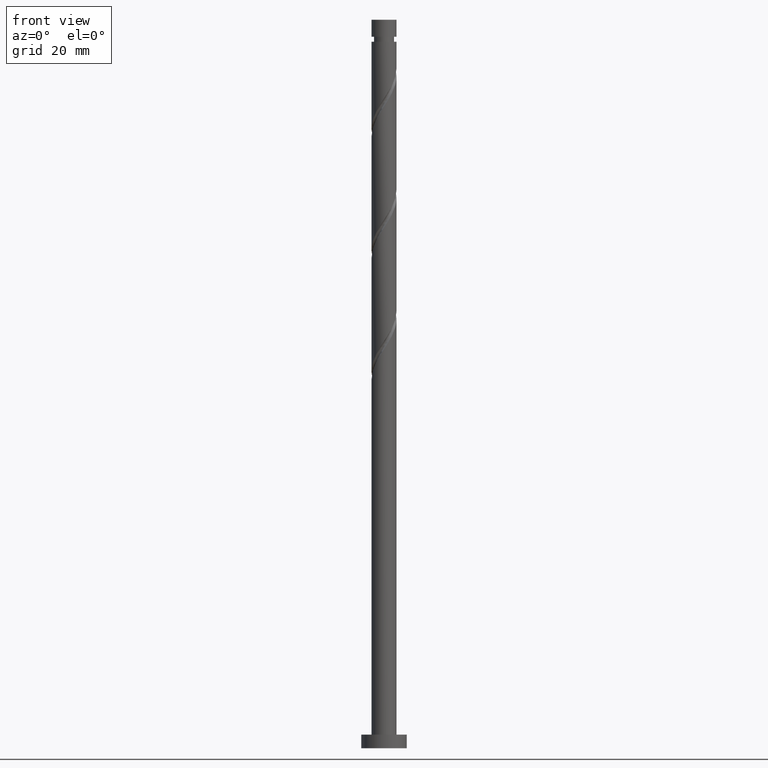
[diagram: clean part render]
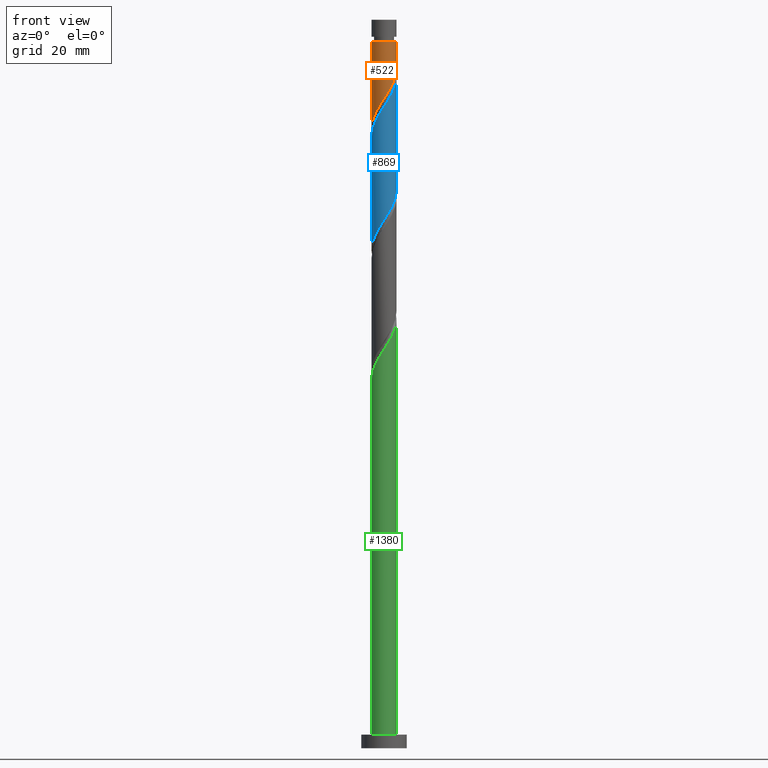
[diagram: same view with three faces highlighted in distinct colors, each labeled with its STEP entity id]
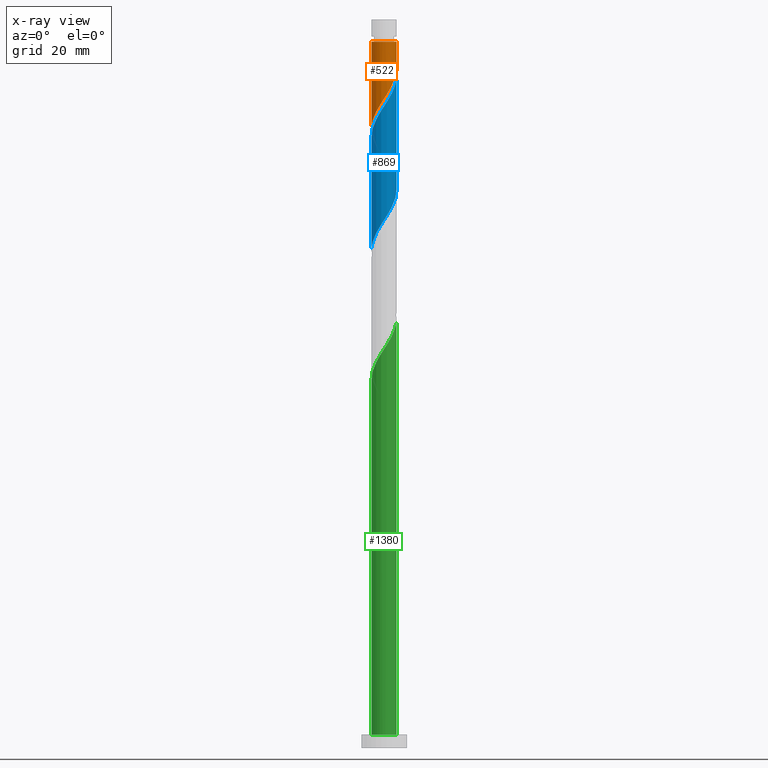
[diagram: x-ray of the same camera — body ghosted, the three highlighted faces saturated]
A machine part, front view with three faces highlighted in distinct colors.
The next image is the same camera in x-ray (body ghosted, the three faces saturated) — at least one of them is partly hidden behind the body in this view.
Their STEP definitions:

[orange] entity #522 — the highlighted cylindrical surface (edge-blend (fillet) strip) has radius 2.75 mm, axis along (-0, -0, -1).
#8 = CARTESIAN_POINT ( 'NONE',  ( 2.456662652402862523, -1.297552352829636879, 147.2716516557582622 ) ) ;
#12 = EDGE_LOOP ( 'NONE', ( #993, #885, #1027, #1538 ) ) ;
#15 = CARTESIAN_POINT ( 'NONE',  ( -2.678791222997725097, -0.6217536357676980430, 136.9686213527279222 ) ) ;
#39 = CARTESIAN_POINT ( 'NONE',  ( 1.365166370583079214, -2.419742605459063611, 144.8474092315157975 ) ) ;
#48 = CARTESIAN_POINT ( 'NONE',  ( 0.9966568199191122579, -2.563040222725488704, 144.2413486254551742 ) ) ;
#51 = DIRECTION ( 'NONE',  ( -0.000000000000000000, -0.000000000000000000, -1.000000000000000000 ) ) ;
#60 = CARTESIAN_POINT ( 'NONE',  ( -1.284345140793827555, -2.431657368816438236, 140.6049849890915198 ) ) ;
#139 = CARTESIAN_POINT ( 'NONE',  ( 2.589687973961434242, -0.9252114339541623877, 147.8777122618187718 ) ) ;
#186 = CARTESIAN_POINT ( 'NONE',  ( 2.750000000000000888, 6.805353420090867911E-16, 149.3332273471803262 ) ) ;
#188 = CARTESIAN_POINT ( 'NONE',  ( -1.633964688862560743, -2.246996415572368289, 139.9989243830308965 ) ) ;
#264 = CARTESIAN_POINT ( 'NONE',  ( -2.589396545961874185, -1.006905667779019353, 137.5746819587884886 ) ) ;
#316 = DIRECTION ( 'NONE',  ( -0.000000000000000000, -0.000000000000000000, -1.000000000000000000 ) ) ;
#373 = CARTESIAN_POINT ( 'NONE',  ( 2.749999999999992895, 3.367778697655216574E-16, 155.1504395345461091 ) ) ;
#394 = EDGE_CURVE ( 'NONE', #443, #542, #650, .T. ) ;
#399 = CARTESIAN_POINT ( 'NONE',  ( -0.1597605880921889598, -2.773681677939491497, 142.4231668072733612 ) ) ;
#422 = VECTOR ( 'NONE', #51, 1000.000000000000000 ) ;
#427 = CARTESIAN_POINT ( 'NONE',  ( -2.750000000000000000, -1.263851349445446926E-15, 135.9998940138469834 ) ) ;
#443 = VERTEX_POINT ( 'NONE', #373 ) ;
#455 = CARTESIAN_POINT ( 'NONE',  ( 1.678377091053236736, -2.178428410627182288, 145.4534698375763924 ) ) ;
#514 = DIRECTION ( 'NONE',  ( -0.000000000000000000, -0.000000000000000000, -1.000000000000000000 ) ) ;
#522 = ADVANCED_FACE ( 'NONE', ( #1037 ), #1585, .T. ) ;
#529 = AXIS2_PLACEMENT_3D ( 'NONE', #1461, #316, #1334 ) ;
#539 = CARTESIAN_POINT ( 'NONE',  ( 2.224125231963128613, -1.617333284312469255, 146.6655910496975821 ) ) ;
#542 = VERTEX_POINT ( 'NONE', #186 ) ;
#546 = CARTESIAN_POINT ( 'NONE',  ( -0.5472430904086417192, -2.695000000000000284, 141.8171062012127379 ) ) ;
#549 = CARTESIAN_POINT ( 'NONE',  ( 2.745449597776791872, -0.1581344556611563590, 149.0898334739399900 ) ) ;
#616 = CARTESIAN_POINT ( 'NONE',  ( 2.750000000000000888, 6.805353420090867911E-16, 149.3332273471803262 ) ) ;
#649 = CARTESIAN_POINT ( 'NONE',  ( 1.991587811523396256, -1.937114215795302075, 146.0595304436370157 ) ) ;
#650 = LINE ( 'NONE', #1152, #1459 ) ;
#832 = EDGE_CURVE ( 'NONE', #443, #1355, #1020, .T. ) ;
#864 = CARTESIAN_POINT ( 'NONE',  ( -0.9347255927250943675, -2.616318322060508628, 141.2110455951521431 ) ) ;
#885 = ORIENTED_EDGE ( 'NONE', *, *, #832, .T. ) ;
#936 = AXIS2_PLACEMENT_3D ( 'NONE', #1015, #514, #991 ) ;
#953 = CARTESIAN_POINT ( 'NONE',  ( 0.6281472692551457460, -2.706337839991914240, 143.6352880193945509 ) ) ;
#991 = DIRECTION ( 'NONE',  ( -1.000000000000000000, 0.000000000000000000, 0.000000000000000000 ) ) ;
#993 = ORIENTED_EDGE ( 'NONE', *, *, #394, .F. ) ;
#1015 = CARTESIAN_POINT ( 'NONE',  ( 0.000000000000000000, 0.000000000000000000, 155.1504395345461091 ) ) ;
#1020 = CIRCLE ( 'NONE', #936, 2.749999999999992895 ) ;
#1027 = ORIENTED_EDGE ( 'NONE', *, *, #1047, .T. ) ;
#1037 = FACE_OUTER_BOUND ( 'NONE', #12, .T. ) ;
#1041 = CARTESIAN_POINT ( 'NONE',  ( 2.722713295520007737, -0.5528705150786890066, 148.4837728678794804 ) ) ;
#1047 = EDGE_CURVE ( 'NONE', #1355, #1123, #1312, .T. ) ;
#1048 = CARTESIAN_POINT ( 'NONE',  ( -2.750000000000000000, -1.263851349445446926E-15, 135.9998940138469834 ) ) ;
#1101 = CARTESIAN_POINT ( 'NONE',  ( -1.917397186166559075, -1.971316319234577064, 139.3928637769703016 ) ) ;
#1111 = CARTESIAN_POINT ( 'NONE',  ( -2.395113114716214575, -1.351270945337903262, 138.1807425648491403 ) ) ;
#1123 = VERTEX_POINT ( 'NONE', #1048 ) ;
#1125 = CARTESIAN_POINT ( 'NONE',  ( 0.2341933405814775881, -2.740009758965702424, 143.0292274133339276 ) ) ;
#1152 = CARTESIAN_POINT ( 'NONE',  ( 2.750000000000000000, 3.367778697655221012E-16, 160.0000000000000000 ) ) ;
#1178 = CARTESIAN_POINT ( 'NONE',  ( -2.750000000000000000, 0.000000000000000000, 160.0000000000000000 ) ) ;
#1234 = CARTESIAN_POINT ( 'NONE',  ( -2.200829683470556741, -1.695636222896787393, 138.7868031709097068 ) ) ;
#1312 = LINE ( 'NONE', #1178, #422 ) ;
#1334 = DIRECTION ( 'NONE',  ( -1.000000000000000000, 0.000000000000000000, 0.000000000000000000 ) ) ;
#1355 = VERTEX_POINT ( 'NONE', #1483 ) ;
#1459 = VECTOR ( 'NONE', #1661, 1000.000000000000000 ) ;
#1461 = CARTESIAN_POINT ( 'NONE',  ( 0.000000000000000000, 0.000000000000000000, 160.0000000000000000 ) ) ;
#1483 = CARTESIAN_POINT ( 'NONE',  ( -2.749999999999992895, 0.000000000000000000, 155.1504395345461091 ) ) ;
#1527 = EDGE_CURVE ( 'NONE', #542, #1123, #1537, .T. ) ;
#1537 =( BOUNDED_CURVE ( )  B_SPLINE_CURVE ( 2, ( #616, #1640, #549, #1041, #139, #8, #539, #649, #455, #39, #48, #953, #1125, #399, #546, #864, #60, #188, #1101, #1234, #1111, #264, #15, #1588, #427 ),
 .UNSPECIFIED., .F., .T. ) 
 B_SPLINE_CURVE_WITH_KNOTS ( ( 3, 2, 2, 2, 2, 2, 2, 2, 2, 2, 2, 2, 3 ),
 ( 0.3045252162417514397, 0.3068181818181818232, 0.3181818181818181768, 0.3295454545454545303, 0.3409090909090908839, 0.3522727272727272929, 0.3636363636363636465, 0.3750000000000000000, 0.3863636363636363535, 0.3977272727272727071, 0.4090909090909091161, 0.4204545454545454697, 0.4295252162417511066 ),
 .UNSPECIFIED. ) 
 CURVE ( )  GEOMETRIC_REPRESENTATION_ITEM ( )  RATIONAL_B_SPLINE_CURVE ( ( 0.9061101570135605687, 0.9072237824201427880, 0.9090909090909201629, 0.8998376744372224012, 0.9090909090909201629, 0.8998376744372224012, 0.9090909090909201629, 0.8998376744372224012, 0.9090909090909201629, 0.8998376744372224012, 0.9090909090909201629, 0.8998376744372224012, 0.9090909090909201629, 0.8998376744372224012, 0.9090909090909201629, 0.8998376744372224012, 0.9090909090909201629, 0.8998376744372224012, 0.9090909090909201629, 0.8998376744372224012, 0.9090909090909201629, 0.8998376744372224012, 0.9090909090909201629, 0.9017048011080001091, 0.9061101570135602357 ) ) 
 REPRESENTATION_ITEM ( '' )  );
#1538 = ORIENTED_EDGE ( 'NONE', *, *, #1527, .F. ) ;
#1585 = CYLINDRICAL_SURFACE ( 'NONE', #529, 2.750000000000000000 ) ;
#1588 = CARTESIAN_POINT ( 'NONE',  ( -2.749999999999999112, -0.3149545503090959708, 136.4858539668182686 ) ) ;
#1640 = CARTESIAN_POINT ( 'NONE',  ( 2.749999999999999556, -0.07913269794051565331, 149.2111293424620442 ) ) ;
#1661 = DIRECTION ( 'NONE',  ( -0.000000000000000000, -0.000000000000000000, -1.000000000000000000 ) ) ;

[blue] entity #869 — the highlighted cylindrical surface (edge-blend (fillet) strip) has radius 2.75 mm, axis along (-0, -0, -1).
#5 = CARTESIAN_POINT ( 'NONE',  ( -2.745449597776796313, -0.1581344556611554431, 134.5443789284854859 ) ) ;
#42 = CARTESIAN_POINT ( 'NONE',  ( 2.745449597776791872, -0.1581344556611563590, 122.4231668072733328 ) ) ;
#98 = VERTEX_POINT ( 'NONE', #1179 ) ;
#136 = CARTESIAN_POINT ( 'NONE',  ( -2.456662652402866964, -1.297552352829637989, 136.3625607466672705 ) ) ;
#144 = CARTESIAN_POINT ( 'NONE',  ( -0.6281472692551464121, -2.706337839991918237, 139.9989243830309533 ) ) ;
#150 = CARTESIAN_POINT ( 'NONE',  ( 2.722713295520007737, -0.5528705150786890066, 121.8171062012127663 ) ) ;
#181 = CARTESIAN_POINT ( 'NONE',  ( 2.678791222997729093, -0.6217536357676993752, 146.6655910496976105 ) ) ;
#203 = LINE ( 'NONE', #1508, #532 ) ;
#213 = CARTESIAN_POINT ( 'NONE',  ( 0.9966568199191122579, -2.563040222725488704, 117.5746819587885312 ) ) ;
#244 = LINE ( 'NONE', #1653, #963 ) ;
#321 = CARTESIAN_POINT ( 'NONE',  ( 0.6281472692551457460, -2.706337839991914240, 116.9686213527279079 ) ) ;
#327 =( BOUNDED_CURVE ( )  B_SPLINE_CURVE ( 2, ( #1167, #1596, #42, #150, #942, #1474, #1371, #1614, #1216, #1487, #213, #321, #588, #1227, #828, #1104, #1346, #1208, #593, #1627, #976, #1495, #1607, #941, #819 ),
 .UNSPECIFIED., .F., .T. ) 
 B_SPLINE_CURVE_WITH_KNOTS ( ( 3, 2, 2, 2, 2, 2, 2, 2, 2, 2, 2, 2, 3 ),
 ( 0.5545252162417511066, 0.5568181818181817677, 0.5681818181818182323, 0.5795454545454545858, 0.5909090909090909394, 0.6022727272727272929, 0.6136363636363636465, 0.6250000000000000000, 0.6363636363636363535, 0.6477272727272727071, 0.6590909090909090606, 0.6704545454545454142, 0.6795252162417513286 ),
 .UNSPECIFIED. ) 
 CURVE ( )  GEOMETRIC_REPRESENTATION_ITEM ( )  RATIONAL_B_SPLINE_CURVE ( ( 0.9061101570135603467, 0.9072237824201425660, 0.9090909090909201629, 0.8998376744372224012, 0.9090909090909201629, 0.8998376744372224012, 0.9090909090909201629, 0.8998376744372224012, 0.9090909090909201629, 0.8998376744372224012, 0.9090909090909201629, 0.8998376744372224012, 0.9090909090909201629, 0.8998376744372224012, 0.9090909090909201629, 0.8998376744372224012, 0.9090909090909201629, 0.8998376744372224012, 0.9090909090909201629, 0.8998376744372224012, 0.9090909090909201629, 0.8998376744372224012, 0.9090909090909201629, 0.9017048011079998870, 0.9061101570135604577 ) ) 
 REPRESENTATION_ITEM ( '' )  );
#328 = FACE_OUTER_BOUND ( 'NONE', #718, .T. ) ;
#351 = ORIENTED_EDGE ( 'NONE', *, *, #1151, .F. ) ;
#400 = CARTESIAN_POINT ( 'NONE',  ( 0.5472430904086413861, -2.695000000000004281, 141.8171062012127379 ) ) ;
#416 = EDGE_CURVE ( 'NONE', #1078, #98, #244, .T. ) ;
#520 = CARTESIAN_POINT ( 'NONE',  ( -2.722713295520012178, -0.5528705150786885625, 135.1504395345461091 ) ) ;
#528 = ORIENTED_EDGE ( 'NONE', *, *, #949, .F. ) ;
#530 = CARTESIAN_POINT ( 'NONE',  ( -1.678377091053239623, -2.178428410627184508, 138.1807425648491687 ) ) ;
#532 = VECTOR ( 'NONE', #1211, 1000.000000000000000 ) ;
#573 = CARTESIAN_POINT ( 'NONE',  ( 2.750000000000004441, 1.705077560198580878E-15, 147.6343183885785493 ) ) ;
#588 = CARTESIAN_POINT ( 'NONE',  ( 0.2341933405814775881, -2.740009758965702424, 116.3625607466672989 ) ) ;
#593 = CARTESIAN_POINT ( 'NONE',  ( -1.917397186166559075, -1.971316319234577064, 112.7261971103036586 ) ) ;
#595 = EDGE_CURVE ( 'NONE', #631, #98, #327, .T. ) ;
#631 = VERTEX_POINT ( 'NONE', #1494 ) ;
#647 = CARTESIAN_POINT ( 'NONE',  ( -2.224125231963132165, -1.617333284312471475, 136.9686213527279506 ) ) ;
#657 = CARTESIAN_POINT ( 'NONE',  ( -1.991587811523397811, -1.937114215795304739, 137.5746819587885170 ) ) ;
#680 = AXIS2_PLACEMENT_3D ( 'NONE', #1203, #1089, #970 ) ;
#687 = CARTESIAN_POINT ( 'NONE',  ( 2.750000000000006661, -0.3149545503090790954, 147.1483584356072356 ) ) ;
#703 = CYLINDRICAL_SURFACE ( 'NONE', #680, 2.750000000000000000 ) ;
#718 = EDGE_LOOP ( 'NONE', ( #528, #351, #1217, #872 ) ) ;
#809 = CARTESIAN_POINT ( 'NONE',  ( 2.395113114716217684, -1.351270945337905927, 145.4534698375763639 ) ) ;
#819 = CARTESIAN_POINT ( 'NONE',  ( -2.750000000000000000, 2.587529981704879547E-15, 109.3332273471803404 ) ) ;
#828 = CARTESIAN_POINT ( 'NONE',  ( -0.5472430904086417192, -2.695000000000000284, 115.1504395345460523 ) ) ;
#869 = ADVANCED_FACE ( 'NONE', ( #328 ), #703, .T. ) ;
#872 = ORIENTED_EDGE ( 'NONE', *, *, #595, .F. ) ;
#893 = CARTESIAN_POINT ( 'NONE',  ( -2.750000000000003553, -1.847167356881795820E-15, 134.3009850552452065 ) ) ;
#903 = CARTESIAN_POINT ( 'NONE',  ( 2.750000000000004441, 1.705077560198580878E-15, 147.6343183885785493 ) ) ;
#941 = CARTESIAN_POINT ( 'NONE',  ( -2.750000000000000888, -0.3149545503090864229, 109.8191873001516257 ) ) ;
#942 = CARTESIAN_POINT ( 'NONE',  ( 2.589687973961434242, -0.9252114339541623877, 121.2110455951521857 ) ) ;
#949 = EDGE_CURVE ( 'NONE', #1139, #631, #203, .T. ) ;
#963 = VECTOR ( 'NONE', #1163, 1000.000000000000000 ) ;
#970 = DIRECTION ( 'NONE',  ( -1.000000000000000000, 0.000000000000000000, 0.000000000000000000 ) ) ;
#976 = CARTESIAN_POINT ( 'NONE',  ( -2.395113114716214575, -1.351270945337903262, 111.5140758981824263 ) ) ;
#1021 = CARTESIAN_POINT ( 'NONE',  ( -1.365166370583082545, -2.419742605459066720, 138.7868031709097352 ) ) ;
#1055 = CARTESIAN_POINT ( 'NONE',  ( -2.750000000000003553, -1.847167356881795820E-15, 134.3009850552452065 ) ) ;
#1078 = VERTEX_POINT ( 'NONE', #1055 ) ;
#1089 = DIRECTION ( 'NONE',  ( -0.000000000000000000, -0.000000000000000000, -1.000000000000000000 ) ) ;
#1104 = CARTESIAN_POINT ( 'NONE',  ( -0.9347255927250943675, -2.616318322060508628, 114.5443789284855143 ) ) ;
#1135 =( BOUNDED_CURVE ( )  B_SPLINE_CURVE ( 2, ( #893, #1571, #5, #520, #1410, #136, #647, #657, #530, #1021, #1428, #144, #1296, #1543, #400, #1272, #1454, #1530, #1327, #1318, #809, #1663, #181, #687, #573 ),
 .UNSPECIFIED., .F., .T. ) 
 B_SPLINE_CURVE_WITH_KNOTS ( ( 3, 2, 2, 2, 2, 2, 2, 2, 2, 2, 2, 2, 3 ),
 ( 0.5545252162417517727, 0.5568181818181818787, 0.5681818181818181213, 0.5795454545454545858, 0.5909090909090908283, 0.6022727272727272929, 0.6136363636363636465, 0.6250000000000000000, 0.6363636363636363535, 0.6477272727272727071, 0.6590909090909091717, 0.6704545454545454142, 0.6795252162417516617 ),
 .UNSPECIFIED. ) 
 CURVE ( )  GEOMETRIC_REPRESENTATION_ITEM ( )  RATIONAL_B_SPLINE_CURVE ( ( 0.9061101570135663419, 0.9072237824201484502, 0.9090909090909256030, 0.8998376744372277303, 0.9090909090909256030, 0.8998376744372277303, 0.9090909090909256030, 0.8998376744372277303, 0.9090909090909256030, 0.8998376744372277303, 0.9090909090909256030, 0.8998376744372277303, 0.9090909090909256030, 0.8998376744372277303, 0.9090909090909256030, 0.8998376744372277303, 0.9090909090909256030, 0.8998376744372277303, 0.9090909090909256030, 0.8998376744372277303, 0.9090909090909256030, 0.8998376744372277303, 0.9090909090909256030, 0.9017048011080051051, 0.9061101570135662309 ) ) 
 REPRESENTATION_ITEM ( '' )  );
#1139 = VERTEX_POINT ( 'NONE', #903 ) ;
#1151 = EDGE_CURVE ( 'NONE', #1078, #1139, #1135, .T. ) ;
#1163 = DIRECTION ( 'NONE',  ( -0.000000000000000000, -0.000000000000000000, -1.000000000000000000 ) ) ;
#1167 = CARTESIAN_POINT ( 'NONE',  ( 2.749999999999999556, -3.170845989141239485E-15, 122.6665606805136548 ) ) ;
#1179 = CARTESIAN_POINT ( 'NONE',  ( -2.750000000000000000, 2.587529981704879547E-15, 109.3332273471803404 ) ) ;
#1203 = CARTESIAN_POINT ( 'NONE',  ( 0.000000000000000000, 0.000000000000000000, 160.0000000000000000 ) ) ;
#1208 = CARTESIAN_POINT ( 'NONE',  ( -1.633964688862560743, -2.246996415572368289, 113.3322577163642819 ) ) ;
#1211 = DIRECTION ( 'NONE',  ( -0.000000000000000000, -0.000000000000000000, -1.000000000000000000 ) ) ;
#1216 = CARTESIAN_POINT ( 'NONE',  ( 1.678377091053236736, -2.178428410627182288, 118.7868031709097068 ) ) ;
#1217 = ORIENTED_EDGE ( 'NONE', *, *, #416, .T. ) ;
#1227 = CARTESIAN_POINT ( 'NONE',  ( -0.1597605880921889598, -2.773681677939491497, 115.7565001406067040 ) ) ;
#1272 = CARTESIAN_POINT ( 'NONE',  ( 0.9347255927250950336, -2.616318322060513069, 142.4231668072733896 ) ) ;
#1296 = CARTESIAN_POINT ( 'NONE',  ( -0.2341933405814791702, -2.740009758965705977, 140.6049849890915198 ) ) ;
#1318 = CARTESIAN_POINT ( 'NONE',  ( 2.200829683470559406, -1.695636222896790501, 144.8474092315157691 ) ) ;
#1327 = CARTESIAN_POINT ( 'NONE',  ( 1.917397186166560852, -1.971316319234581060, 144.2413486254551458 ) ) ;
#1346 = CARTESIAN_POINT ( 'NONE',  ( -1.284345140793827555, -2.431657368816438236, 113.9383183224248910 ) ) ;
#1371 = CARTESIAN_POINT ( 'NONE',  ( 2.224125231963128613, -1.617333284312469255, 119.9989243830309249 ) ) ;
#1410 = CARTESIAN_POINT ( 'NONE',  ( -2.589687973961440015, -0.9252114339541630539, 135.7565001406066756 ) ) ;
#1428 = CARTESIAN_POINT ( 'NONE',  ( -0.9966568199191147004, -2.563040222725492701, 139.3928637769703300 ) ) ;
#1454 = CARTESIAN_POINT ( 'NONE',  ( 1.284345140793828222, -2.431657368816442233, 143.0292274133340413 ) ) ;
#1474 = CARTESIAN_POINT ( 'NONE',  ( 2.456662652402862523, -1.297552352829636879, 120.6049849890915482 ) ) ;
#1487 = CARTESIAN_POINT ( 'NONE',  ( 1.365166370583079214, -2.419742605459063611, 118.1807425648490977 ) ) ;
#1494 = CARTESIAN_POINT ( 'NONE',  ( 2.750000000000000000, -3.170845989141239485E-15, 122.6665606805136548 ) ) ;
#1495 = CARTESIAN_POINT ( 'NONE',  ( -2.589396545961874185, -1.006905667779019353, 110.9080152921218598 ) ) ;
#1508 = CARTESIAN_POINT ( 'NONE',  ( 2.750000000000000000, 3.367778697655221012E-16, 160.0000000000000000 ) ) ;
#1530 = CARTESIAN_POINT ( 'NONE',  ( 1.633964688862563186, -2.246996415572371841, 143.6352880193946362 ) ) ;
#1543 = CARTESIAN_POINT ( 'NONE',  ( 0.1597605880921880717, -2.773681677939495493, 141.2110455951521715 ) ) ;
#1571 = CARTESIAN_POINT ( 'NONE',  ( -2.750000000000002665, -0.07913269794052486816, 134.4230830599634317 ) ) ;
#1596 = CARTESIAN_POINT ( 'NONE',  ( 2.750000000000000444, -0.07913269794050607764, 122.5444626757954296 ) ) ;
#1607 = CARTESIAN_POINT ( 'NONE',  ( -2.678791222997725097, -0.6217536357676980430, 110.3019546860612365 ) ) ;
#1614 = CARTESIAN_POINT ( 'NONE',  ( 1.991587811523396256, -1.937114215795302075, 119.3928637769703442 ) ) ;
#1627 = CARTESIAN_POINT ( 'NONE',  ( -2.200829683470556741, -1.695636222896787393, 112.1201365042430922 ) ) ;
#1653 = CARTESIAN_POINT ( 'NONE',  ( -2.750000000000000000, 0.000000000000000000, 160.0000000000000000 ) ) ;
#1663 = CARTESIAN_POINT ( 'NONE',  ( 2.589396545961878182, -1.006905667779020686, 146.0595304436370157 ) ) ;

[green] entity #1380 — the highlighted cylindrical surface (edge-blend (fillet) strip) has radius 2.75 mm, axis along (-0, -0, -1).
#4 = CARTESIAN_POINT ( 'NONE',  ( -2.750000000000000000, 0.000000000000000000, 3.000000000000000000 ) ) ;
#30 = CARTESIAN_POINT ( 'NONE',  ( 0.000000000000000000, 0.000000000000000000, 160.0000000000000000 ) ) ;
#53 = CARTESIAN_POINT ( 'NONE',  ( 0.9347255927250950336, -2.616318322060513069, 89.08983347394007524 ) ) ;
#57 = EDGE_CURVE ( 'NONE', #958, #412, #1356, .T. ) ;
#73 = CARTESIAN_POINT ( 'NONE',  ( -2.589687973961440015, -0.9252114339541630539, 82.42316680727334699 ) ) ;
#157 = CARTESIAN_POINT ( 'NONE',  ( 1.284345140793828222, -2.431657368816442233, 89.69589408000062747 ) ) ;
#166 = CARTESIAN_POINT ( 'NONE',  ( -1.365166370583082545, -2.419742605459066720, 85.45346983757642079 ) ) ;
#175 = CARTESIAN_POINT ( 'NONE',  ( -0.9966568199191147004, -2.563040222725492701, 86.05953044363698723 ) ) ;
#243 = DIRECTION ( 'NONE',  ( -0.000000000000000000, -0.000000000000000000, -1.000000000000000000 ) ) ;
#267 = DIRECTION ( 'NONE',  ( 1.000000000000000000, 0.000000000000000000, 0.000000000000000000 ) ) ;
#296 = CARTESIAN_POINT ( 'NONE',  ( 2.589396545961878182, -1.006905667779020686, 92.72619711030370127 ) ) ;
#324 = EDGE_CURVE ( 'NONE', #1273, #1425, #1433, .T. ) ;
#330 = CARTESIAN_POINT ( 'NONE',  ( -1.678377091053239623, -2.178428410627184508, 84.84740923151578329 ) ) ;
#335 = DIRECTION ( 'NONE',  ( -0.000000000000000000, -0.000000000000000000, -1.000000000000000000 ) ) ;
#350 = CARTESIAN_POINT ( 'NONE',  ( -2.750000000000000000, 0.000000000000000000, 160.0000000000000000 ) ) ;
#375 = ORIENTED_EDGE ( 'NONE', *, *, #324, .T. ) ;
#412 = VERTEX_POINT ( 'NONE', #1007 ) ;
#434 = CARTESIAN_POINT ( 'NONE',  ( 2.678791222997729093, -0.6217536357676993752, 93.33225771636428192 ) ) ;
#452 = CARTESIAN_POINT ( 'NONE',  ( -2.745449597776796313, -0.1581344556611554431, 81.21104559515217147 ) ) ;
#454 = LINE ( 'NONE', #350, #583 ) ;
#465 = CARTESIAN_POINT ( 'NONE',  ( -2.750000000000003553, -1.847167356881795820E-15, 80.96765172191189208 ) ) ;
#543 = EDGE_CURVE ( 'NONE', #412, #1425, #1075, .T. ) ;
#552 = CARTESIAN_POINT ( 'NONE',  ( -2.750000000000003553, -1.847167356881795820E-15, 80.96765172191189208 ) ) ;
#569 = CARTESIAN_POINT ( 'NONE',  ( 0.5472430904086413861, -2.695000000000004281, 88.48377286787942353 ) ) ;
#577 = CARTESIAN_POINT ( 'NONE',  ( -1.991587811523397811, -1.937114215795304739, 84.24134862545521685 ) ) ;
#583 = VECTOR ( 'NONE', #335, 1000.000000000000000 ) ;
#639 = EDGE_CURVE ( 'NONE', #958, #1273, #454, .T. ) ;
#667 = CARTESIAN_POINT ( 'NONE',  ( 1.917397186166560852, -1.971316319234581060, 90.90801529212183141 ) ) ;
#726 = VECTOR ( 'NONE', #1341, 1000.000000000000000 ) ;
#794 = CARTESIAN_POINT ( 'NONE',  ( 2.750000000000003997, -0.3149545503090874776, 93.81502510227389280 ) ) ;
#878 = DIRECTION ( 'NONE',  ( 0.000000000000000000, 0.000000000000000000, 1.000000000000000000 ) ) ;
#932 = CARTESIAN_POINT ( 'NONE',  ( 2.750000000000004441, 1.705077560198580878E-15, 94.30098505524520647 ) ) ;
#958 = VERTEX_POINT ( 'NONE', #465 ) ;
#1007 = CARTESIAN_POINT ( 'NONE',  ( 2.750000000000004441, 1.705077560198580878E-15, 94.30098505524520647 ) ) ;
#1023 = DIRECTION ( 'NONE',  ( -1.000000000000000000, 0.000000000000000000, 0.000000000000000000 ) ) ;
#1066 = CARTESIAN_POINT ( 'NONE',  ( -2.224125231963132165, -1.617333284312471475, 83.63528801939457935 ) ) ;
#1073 = CARTESIAN_POINT ( 'NONE',  ( -0.2341933405814791702, -2.740009758965705977, 87.27165165575823380 ) ) ;
#1075 = LINE ( 'NONE', #1601, #726 ) ;
#1105 = ORIENTED_EDGE ( 'NONE', *, *, #543, .F. ) ;
#1128 = AXIS2_PLACEMENT_3D ( 'NONE', #1413, #878, #267 ) ;
#1143 = CYLINDRICAL_SURFACE ( 'NONE', #1158, 2.750000000000000000 ) ;
#1158 = AXIS2_PLACEMENT_3D ( 'NONE', #30, #243, #1023 ) ;
#1185 = CARTESIAN_POINT ( 'NONE',  ( 0.1597605880921880717, -2.773681677939495493, 87.87771226181882867 ) ) ;
#1192 = CARTESIAN_POINT ( 'NONE',  ( -2.750000000000003109, -0.07913269794051142059, 81.08974972663008884 ) ) ;
#1197 = CARTESIAN_POINT ( 'NONE',  ( -2.722713295520012178, -0.5528705150786885625, 81.81710620121276634 ) ) ;
#1252 = EDGE_LOOP ( 'NONE', ( #1105, #1303, #1471, #375 ) ) ;
#1273 = VERTEX_POINT ( 'NONE', #4 ) ;
#1303 = ORIENTED_EDGE ( 'NONE', *, *, #57, .F. ) ;
#1321 = CARTESIAN_POINT ( 'NONE',  ( -2.456662652402866964, -1.297552352829637989, 83.02922741333395606 ) ) ;
#1341 = DIRECTION ( 'NONE',  ( -0.000000000000000000, -0.000000000000000000, -1.000000000000000000 ) ) ;
#1356 =( BOUNDED_CURVE ( )  B_SPLINE_CURVE ( 2, ( #552, #1192, #452, #1197, #73, #1321, #1066, #577, #330, #166, #175, #1564, #1073, #1185, #569, #53, #157, #1583, #667, #1592, #1442, #296, #434, #794, #932 ),
 .UNSPECIFIED., .F., .T. ) 
 B_SPLINE_CURVE_WITH_KNOTS ( ( 3, 2, 2, 2, 2, 2, 2, 2, 2, 2, 2, 2, 3 ),
 ( 0.05452521624175129394, 0.05681818181818176772, 0.06818181818181823228, 0.07954545454545458583, 0.09090909090909093937, 0.1022727272727272929, 0.1136363636363636465, 0.1250000000000000000, 0.1363636363636363535, 0.1477272727272727071, 0.1590909090909090606, 0.1704545454545454142, 0.1795252162417513286 ),
 .UNSPECIFIED. ) 
 CURVE ( )  GEOMETRIC_REPRESENTATION_ITEM ( )  RATIONAL_B_SPLINE_CURVE ( ( 0.9061101570135658978, 0.9072237824201481171, 0.9090909090909256030, 0.8998376744372277303, 0.9090909090909256030, 0.8998376744372277303, 0.9090909090909256030, 0.8998376744372277303, 0.9090909090909256030, 0.8998376744372277303, 0.9090909090909256030, 0.8998376744372277303, 0.9090909090909256030, 0.8998376744372277303, 0.9090909090909256030, 0.8998376744372277303, 0.9090909090909256030, 0.8998376744372277303, 0.9090909090909256030, 0.8998376744372277303, 0.9090909090909256030, 0.8998376744372277303, 0.9090909090909256030, 0.9017048011080052161, 0.9061101570135658978 ) ) 
 REPRESENTATION_ITEM ( '' )  );
#1380 = ADVANCED_FACE ( 'NONE', ( #1554 ), #1143, .T. ) ;
#1413 = CARTESIAN_POINT ( 'NONE',  ( 0.000000000000000000, 0.000000000000000000, 3.000000000000000000 ) ) ;
#1425 = VERTEX_POINT ( 'NONE', #1514 ) ;
#1433 = CIRCLE ( 'NONE', #1128, 2.750000000000000000 ) ;
#1442 = CARTESIAN_POINT ( 'NONE',  ( 2.395113114716217684, -1.351270945337905927, 92.12013650424306377 ) ) ;
#1471 = ORIENTED_EDGE ( 'NONE', *, *, #639, .T. ) ;
#1514 = CARTESIAN_POINT ( 'NONE',  ( 2.750000000000000000, 3.367778697655221012E-16, 3.000000000000000000 ) ) ;
#1554 = FACE_OUTER_BOUND ( 'NONE', #1252, .T. ) ;
#1564 = CARTESIAN_POINT ( 'NONE',  ( -0.6281472692551464121, -2.706337839991918237, 86.66559104969763894 ) ) ;
#1583 = CARTESIAN_POINT ( 'NONE',  ( 1.633964688862563186, -2.246996415572371841, 90.30195468606126497 ) ) ;
#1592 = CARTESIAN_POINT ( 'NONE',  ( 2.200829683470559406, -1.695636222896790501, 91.51407589818251154 ) ) ;
#1601 = CARTESIAN_POINT ( 'NONE',  ( 2.750000000000000000, 3.367778697655221012E-16, 160.0000000000000000 ) ) ;